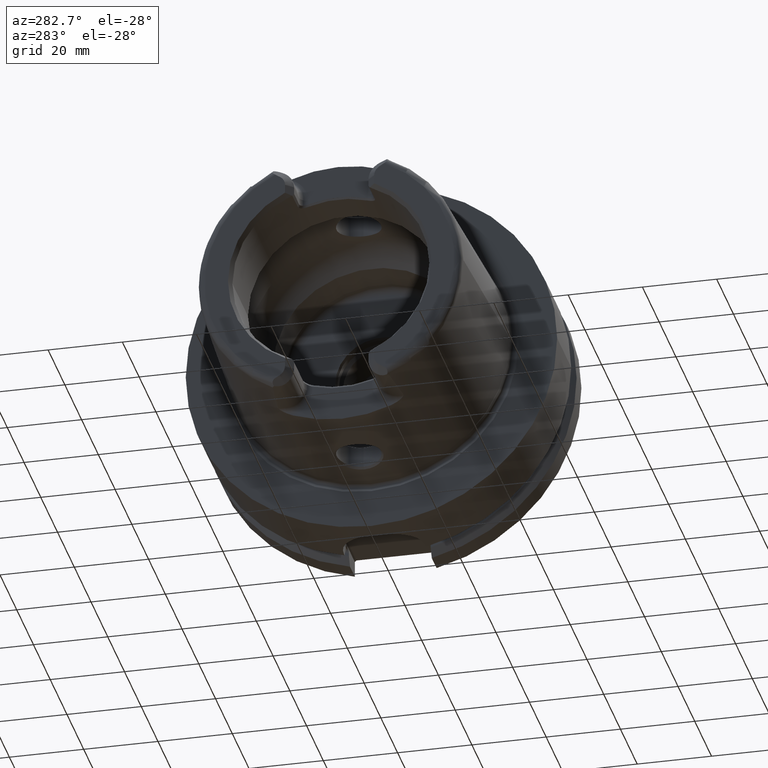
[diagram: clean part render]
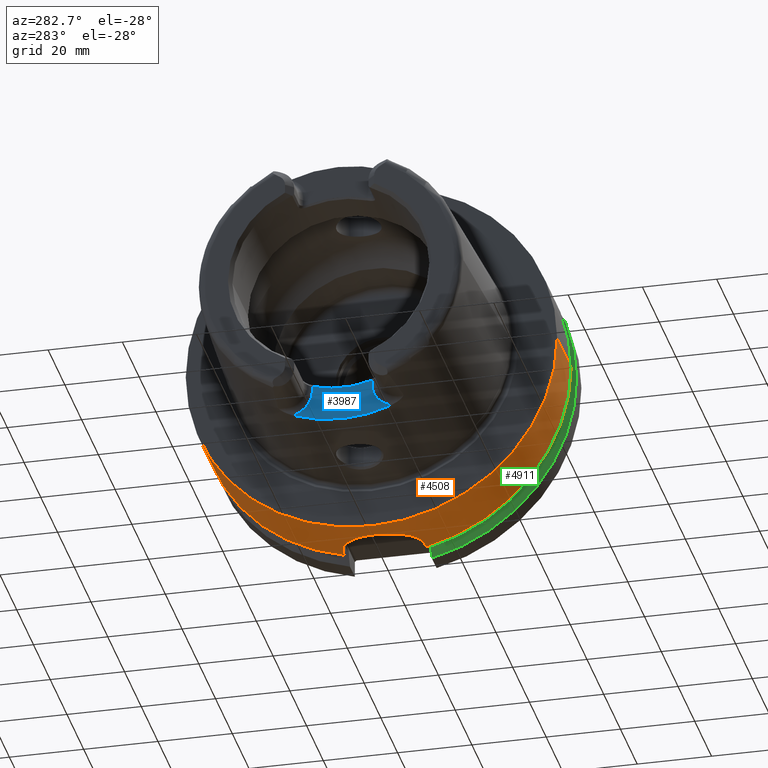
[diagram: same view with three faces highlighted in distinct colors, each labeled with its STEP entity id]
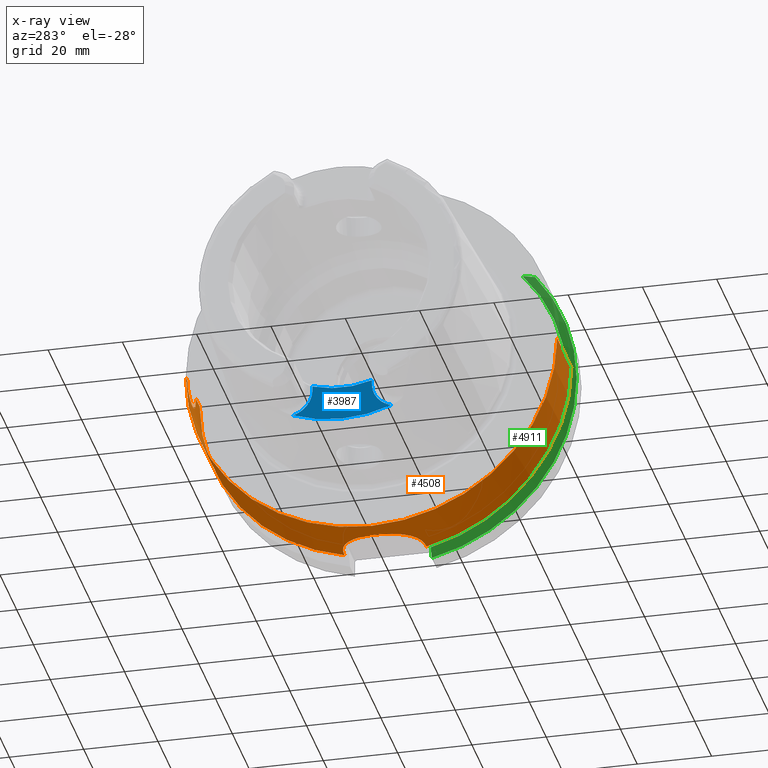
[diagram: x-ray of the same camera — body ghosted, the three highlighted faces saturated]
A machine part, auxiliary view with three faces highlighted in distinct colors.
The next image is the same camera in x-ray (body ghosted, the three faces saturated) — at least one of them is partly hidden behind the body in this view.
Their STEP definitions:

[orange] entity #4508 — the highlighted cylindrical surface (partial cylindrical patch) has radius 50 mm, axis along (1, 0, 0).
#910=CARTESIAN_POINT('',(2.842170943040E-14,0.E0,0.E0));
#911=DIRECTION('',(-1.E0,0.E0,0.E0));
#912=DIRECTION('',(0.E0,1.E0,0.E0));
#913=AXIS2_PLACEMENT_3D('',#910,#911,#912);
#965=CARTESIAN_POINT('',(2.E0,5.E1,1.118758432857E-13));
#967=CARTESIAN_POINT('',(1.2E1,5.E1,2.305800131571E-14));
#1149=DIRECTION('',(1.E0,0.E0,0.E0));
#1150=VECTOR('',#1149,7.524047358084E-1);
#1151=CARTESIAN_POINT('',(1.6E1,1.1E1,-4.877499359303E1));
#1152=LINE('',#1151,#1150);
#1153=CARTESIAN_POINT('',(1.675240473581E1,0.E0,0.E0));
#1154=DIRECTION('',(1.E0,0.E0,0.E0));
#1155=DIRECTION('',(0.E0,2.2E-1,-9.754998718606E-1));
#1156=AXIS2_PLACEMENT_3D('',#1153,#1154,#1155);
#1158=DIRECTION('',(-1.E0,0.E0,0.E0));
#1159=VECTOR('',#1158,4.752404735808E0);
#1160=CARTESIAN_POINT('',(1.675240473581E1,5.E1,0.E0));
#1161=LINE('',#1160,#1159);
#1162=CARTESIAN_POINT('',(7.E0,4.974937185533E1,-5.E0));
#1163=CARTESIAN_POINT('',(7.214633369567E0,4.974937185533E1,-5.E0));
#1164=CARTESIAN_POINT('',(7.640386298435E0,4.975213065018E1,-4.972666360467E0));
#1165=CARTESIAN_POINT('',(8.274641361953E0,4.976438841384E1,-4.849158121706E0));
#1166=CARTESIAN_POINT('',(8.886020855356E0,4.978391945578E1,-4.645521380047E0));
#1167=CARTESIAN_POINT('',(9.464921805396E0,4.980935892457E1,-4.365866273701E0));
#1168=CARTESIAN_POINT('',(1.000148682294E1,4.983894625348E1,-4.016101899832E0));
#1169=CARTESIAN_POINT('',(1.049544382004E1,4.987128929303E1,-3.594954537167E0));
#1170=CARTESIAN_POINT('',(1.093328252566E1,4.990407345488E1,-3.109850358381E0));
#1171=CARTESIAN_POINT('',(1.130435342350E1,4.993485871418E1,-2.572130277900E0));
#1172=CARTESIAN_POINT('',(1.160677173349E1,4.996197754497E1,-1.981903060800E0));
#1173=CARTESIAN_POINT('',(1.183330662283E1,4.998349884815E1,-1.340220481854E0));
#1174=CARTESIAN_POINT('',(1.197044850157E1,4.999703119876E1,
-6.688359514011E-1));
#1175=CARTESIAN_POINT('',(1.2E1,5.E1,-2.237498970126E-1));
#1176=CARTESIAN_POINT('',(1.2E1,5.E1,2.305800131571E-14));
#1178=CARTESIAN_POINT('',(2.E0,5.E1,1.118758432857E-13));
#1179=CARTESIAN_POINT('',(2.E0,5.E1,-2.234702192277E-1));
#1180=CARTESIAN_POINT('',(2.029478359112E0,4.999703853190E1,
-6.681473837066E-1));
#1181=CARTESIAN_POINT('',(2.166444197694E0,4.998352324893E1,-1.339309249725E0));
#1182=CARTESIAN_POINT('',(2.392942530114E0,4.996200329443E1,-1.981343201711E0));
#1183=CARTESIAN_POINT('',(2.695842610324E0,4.993484130346E1,-2.572495925426E0));
#1184=CARTESIAN_POINT('',(3.066846855438E0,4.990406337793E1,-3.109998926782E0));
#1185=CARTESIAN_POINT('',(3.504802790907E0,4.987127154916E1,-3.595208944890E0));
#1186=CARTESIAN_POINT('',(3.998946554545E0,4.983891901808E1,-4.016442348510E0));
#1187=CARTESIAN_POINT('',(4.535798414476E0,4.980932338391E1,-4.366269177248E0));
#1188=CARTESIAN_POINT('',(5.114389528668E0,4.978390508543E1,-4.645671467419E0));
#1189=CARTESIAN_POINT('',(5.725653660578E0,4.976438108882E1,-4.849233183616E0));
#1190=CARTESIAN_POINT('',(6.359805679124E0,4.975212880871E1,-4.972684387731E0));
#1191=CARTESIAN_POINT('',(6.785436141585E0,4.974937185533E1,-5.E0));
#1192=CARTESIAN_POINT('',(7.E0,4.974937185533E1,-5.E0));
#1194=DIRECTION('',(-1.E0,0.E0,-5.389684364428E-14));
#1195=VECTOR('',#1194,2.E0);
#1196=CARTESIAN_POINT('',(2.E0,5.E1,1.118758432857E-13));
#1197=LINE('',#1196,#1195);
#1198=DIRECTION('',(-1.E0,0.E0,0.E0));
#1199=VECTOR('',#1198,1.675240473581E1);
#1200=CARTESIAN_POINT('',(1.675240473581E1,-5.E1,-1.020538999289E-14));
#1201=LINE('',#1200,#1199);
#1202=CARTESIAN_POINT('',(1.675240473581E1,0.E0,0.E0));
#1203=DIRECTION('',(1.E0,0.E0,0.E0));
#1204=DIRECTION('',(0.E0,-1.E0,0.E0));
#1205=AXIS2_PLACEMENT_3D('',#1202,#1203,#1204);
#1207=DIRECTION('',(1.E0,0.E0,0.E0));
#1208=VECTOR('',#1207,7.524047358084E-1);
#1209=CARTESIAN_POINT('',(1.6E1,-1.1E1,-4.877499359303E1));
#1210=LINE('',#1209,#1208);
#1211=CARTESIAN_POINT('',(1.6E1,1.1E1,-4.877499359303E1));
#1212=CARTESIAN_POINT('',(1.559018257905E1,1.1E1,-4.877499359303E1));
#1213=CARTESIAN_POINT('',(1.477711159673E1,1.095451320529E1,-4.878528536585E1));
#1214=CARTESIAN_POINT('',(1.357067145529E1,1.075155562543E1,-4.883060913739E1));
#1215=CARTESIAN_POINT('',(1.239697044362E1,1.041701199330E1,-4.890337958253E1));
#1216=CARTESIAN_POINT('',(1.126604368867E1,9.954285023678E0,-4.900007168819E1));
#1217=CARTESIAN_POINT('',(1.018861460789E1,9.366719390129E0,-4.911629237336E1));
#1218=CARTESIAN_POINT('',(9.171169852965E0,8.653611601527E0,-4.924753373663E1));
#1219=CARTESIAN_POINT('',(8.238112427873E0,7.827355870653E0,-4.938617340423E1));
#1220=CARTESIAN_POINT('',(7.408534809738E0,6.906350690547E0,-4.952392252207E1));
#1221=CARTESIAN_POINT('',(6.684814288863E0,5.894847548323E0,-4.965510065551E1));
#1222=CARTESIAN_POINT('',(6.073071272628E0,4.794393782369E0,-4.977397254495E1));
#1223=CARTESIAN_POINT('',(5.592123651736E0,3.632677023721E0,-4.987254683568E1));
#1224=CARTESIAN_POINT('',(5.250238197135E0,2.439289241831E0,-4.994531736735E1));
#1225=CARTESIAN_POINT('',(5.045520699082E0,1.225562746985E0,-4.998995582807E1));
#1226=CARTESIAN_POINT('',(4.977227881444E0,-3.740276953115E-4,
-5.000502466790E1));
#1227=CARTESIAN_POINT('',(5.045567799397E0,-1.225855878190E0,
-4.998994549498E1));
#1228=CARTESIAN_POINT('',(5.250299426848E0,-2.439598673877E0,
-4.994530410544E1));
#1229=CARTESIAN_POINT('',(5.592303250762E0,-3.633222860669E0,
-4.987250891646E1));
#1230=CARTESIAN_POINT('',(6.073397920689E0,-4.795067840635E0,
-4.977390711218E1));
#1231=CARTESIAN_POINT('',(6.685094341996E0,-5.895262007410E0,
-4.965504880039E1));
#1232=CARTESIAN_POINT('',(7.408627914384E0,-6.906453417659E0,
-4.952390705198E1));
#1233=CARTESIAN_POINT('',(8.238178868202E0,-7.827424926999E0,
-4.938616267622E1));
#1234=CARTESIAN_POINT('',(9.171249006951E0,-8.653666912305E0,
-4.924752342943E1));
#1235=CARTESIAN_POINT('',(1.018844028681E1,-9.366593829070E0,
-4.911631544663E1));
#1236=CARTESIAN_POINT('',(1.126555151976E1,-9.954042725384E0,
-4.900012084109E1));
#1237=CARTESIAN_POINT('',(1.239641067197E1,-1.041682105138E1,
-4.890342051862E1));
#1238=CARTESIAN_POINT('',(1.357019214113E1,-1.075145104870E1,
-4.883063231386E1));
#1239=CARTESIAN_POINT('',(1.477674649303E1,-1.095448033737E1,
-4.878529280321E1));
#1240=CARTESIAN_POINT('',(1.559004302136E1,-1.1E1,-4.877499359303E1));
#1241=CARTESIAN_POINT('',(1.6E1,-1.1E1,-4.877499359303E1));
#2839=CARTESIAN_POINT('',(2.842170943040E-14,5.E1,0.E0));
#2840=CARTESIAN_POINT('',(2.842170943040E-14,-5.E1,0.E0));
#2841=VERTEX_POINT('',#2839);
#2842=VERTEX_POINT('',#2840);
#3058=CARTESIAN_POINT('',(1.675240473581E1,-5.E1,-1.020538999289E-14));
#3059=VERTEX_POINT('',#3058);
#3086=CARTESIAN_POINT('',(7.E0,4.974937185533E1,-5.E0));
#3087=VERTEX_POINT('',#3086);
#3088=VERTEX_POINT('',#965);
#3089=VERTEX_POINT('',#967);
#3090=CARTESIAN_POINT('',(1.675240473581E1,5.E1,0.E0));
#3091=VERTEX_POINT('',#3090);
#3140=CARTESIAN_POINT('',(1.6E1,1.1E1,-4.877499359303E1));
#3141=CARTESIAN_POINT('',(1.675240473581E1,1.1E1,-4.877499359303E1));
#3142=VERTEX_POINT('',#3140);
#3143=VERTEX_POINT('',#3141);
#3148=CARTESIAN_POINT('',(1.6E1,-1.1E1,-4.877499359303E1));
#3149=CARTESIAN_POINT('',(1.675240473581E1,-1.1E1,-4.877499359303E1));
#3150=VERTEX_POINT('',#3148);
#3151=VERTEX_POINT('',#3149);
#4483=CARTESIAN_POINT('',(-5.395E1,0.E0,0.E0));
#4484=DIRECTION('',(1.E0,0.E0,0.E0));
#4485=DIRECTION('',(0.E0,-1.E0,0.E0));
#4486=AXIS2_PLACEMENT_3D('',#4483,#4484,#4485);
#4487=CYLINDRICAL_SURFACE('',#4486,5.E1);
#4489=ORIENTED_EDGE('',*,*,#4488,.T.);
#4491=ORIENTED_EDGE('',*,*,#4490,.T.);
#4492=ORIENTED_EDGE('',*,*,#4307,.T.);
#4494=ORIENTED_EDGE('',*,*,#4493,.F.);
#4496=ORIENTED_EDGE('',*,*,#4495,.F.);
#4497=ORIENTED_EDGE('',*,*,#4301,.T.);
#4498=ORIENTED_EDGE('',*,*,#4276,.T.);
#4499=ORIENTED_EDGE('',*,*,#4298,.F.);
#4501=ORIENTED_EDGE('',*,*,#4500,.T.);
#4503=ORIENTED_EDGE('',*,*,#4502,.F.);
#4505=ORIENTED_EDGE('',*,*,#4504,.F.);
#4506=EDGE_LOOP('',(#4489,#4491,#4492,#4494,#4496,#4497,#4498,#4499,#4501,#4503,
#4505));
#4507=FACE_OUTER_BOUND('',#4506,.F.);
#4508=ADVANCED_FACE('',(#4507),#4487,.T.);
#914=CIRCLE('',#913,5.E1);
#1157=CIRCLE('',#1156,5.E1);
#1177=B_SPLINE_CURVE_WITH_KNOTS('',3,(#1162,#1163,#1164,#1165,#1166,#1167,#1168,
#1169,#1170,#1171,#1172,#1173,#1174,#1175,#1176),.UNSPECIFIED.,.F.,.F.,(4,1,1,1,
1,1,1,1,1,1,1,1,4),(0.E0,8.333333333333E-2,1.666666666667E-1,2.5E-1,
3.333333333333E-1,4.166666666667E-1,5.E-1,5.833333333333E-1,6.666666666667E-1,
7.5E-1,8.333333333333E-1,9.166666666667E-1,1.E0),.UNSPECIFIED.);
#1193=B_SPLINE_CURVE_WITH_KNOTS('',3,(#1178,#1179,#1180,#1181,#1182,#1183,#1184,
#1185,#1186,#1187,#1188,#1189,#1190,#1191,#1192),.UNSPECIFIED.,.F.,.F.,(4,1,1,1,
1,1,1,1,1,1,1,1,4),(0.E0,8.333333333333E-2,1.666666666667E-1,2.5E-1,
3.333333333333E-1,4.166666666667E-1,5.E-1,5.833333333333E-1,6.666666666667E-1,
7.5E-1,8.333333333333E-1,9.166666666667E-1,1.E0),.UNSPECIFIED.);
#1206=CIRCLE('',#1205,5.E1);
#1242=B_SPLINE_CURVE_WITH_KNOTS('',3,(#1211,#1212,#1213,#1214,#1215,#1216,#1217,
#1218,#1219,#1220,#1221,#1222,#1223,#1224,#1225,#1226,#1227,#1228,#1229,#1230,
#1231,#1232,#1233,#1234,#1235,#1236,#1237,#1238,#1239,#1240,#1241),
.UNSPECIFIED.,.F.,.F.,(4,1,1,1,1,1,1,1,1,1,1,1,1,1,1,1,1,1,1,1,1,1,1,1,1,1,1,1,
4),(0.E0,3.571428571429E-2,7.142857142857E-2,1.071428571429E-1,
1.428571428571E-1,1.785714285714E-1,2.142857142857E-1,2.5E-1,2.857142857143E-1,
3.214285714286E-1,3.571428571429E-1,3.928571428571E-1,4.285714285714E-1,
4.642857142857E-1,5.E-1,5.357142857143E-1,5.714285714286E-1,6.071428571429E-1,
6.428571428571E-1,6.785714285714E-1,7.142857142857E-1,7.5E-1,7.857142857143E-1,
8.214285714286E-1,8.571428571429E-1,8.928571428571E-1,9.285714285714E-1,
9.642857142857E-1,1.E0),.UNSPECIFIED.);
#4276=EDGE_CURVE('',#2841,#2842,#914,.T.);
#4298=EDGE_CURVE('',#3059,#2842,#1201,.T.);
#4301=EDGE_CURVE('',#3088,#2841,#1197,.T.);
#4307=EDGE_CURVE('',#3091,#3089,#1161,.T.);
#4488=EDGE_CURVE('',#3142,#3143,#1152,.T.);
#4490=EDGE_CURVE('',#3143,#3091,#1157,.T.);
#4493=EDGE_CURVE('',#3087,#3089,#1177,.T.);
#4495=EDGE_CURVE('',#3088,#3087,#1193,.T.);
#4500=EDGE_CURVE('',#3059,#3151,#1206,.T.);
#4502=EDGE_CURVE('',#3150,#3151,#1210,.T.);
#4504=EDGE_CURVE('',#3142,#3150,#1242,.T.);

[blue] entity #3987 — the highlighted planar face has unit normal (-1, 0, 0).
#549=CARTESIAN_POINT('',(-3.5E1,0.E0,0.E0));
#550=DIRECTION('',(1.E0,0.E0,0.E0));
#551=DIRECTION('',(0.E0,-3.659355944317E-1,-9.306401779033E-1));
#552=AXIS2_PLACEMENT_3D('',#549,#550,#551);
#659=CARTESIAN_POINT('',(-3.5E1,1.326662904053E1,-3.373942900971E1));
#700=CARTESIAN_POINT('',(-3.5E1,-8.009999999994E0,-2.576044140549E1));
#701=CARTESIAN_POINT('',(-3.5E1,-7.269616392494E0,-2.599521452766E1));
#702=CARTESIAN_POINT('',(-3.5E1,-5.774680607735E0,-2.639793295020E1));
#703=CARTESIAN_POINT('',(-3.5E1,-3.481759859027E0,-2.680464578135E1));
#704=CARTESIAN_POINT('',(-3.5E1,-1.163574268408E0,-2.700848033442E1));
#705=CARTESIAN_POINT('',(-3.5E1,1.163574229636E0,-2.700848033529E1));
#706=CARTESIAN_POINT('',(-3.5E1,3.481759771636E0,-2.680464579107E1));
#707=CARTESIAN_POINT('',(-3.5E1,5.774680487919E0,-2.639793297771E1));
#708=CARTESIAN_POINT('',(-3.5E1,7.269616343063E0,-2.599521454333E1));
#709=CARTESIAN_POINT('',(-3.5E1,8.009999999993E0,-2.576044140549E1));
#711=DIRECTION('',(0.E0,-5.262912738182E-12,-1.E0));
#712=VECTOR('',#711,1.199558594507E0);
#713=CARTESIAN_POINT('',(-3.5E1,-8.009999999994E0,-2.576044140549E1));
#714=LINE('',#713,#712);
#715=CARTESIAN_POINT('',(-3.5E1,-1.501E1,-2.696E1));
#716=DIRECTION('',(-1.E0,0.E0,0.E0));
#717=DIRECTION('',(0.E0,1.E0,0.E0));
#718=AXIS2_PLACEMENT_3D('',#715,#716,#717);
#720=CARTESIAN_POINT('',(-3.5E1,1.501E1,-2.696E1));
#721=DIRECTION('',(-1.E0,0.E0,0.E0));
#722=DIRECTION('',(0.E0,-2.490529942106E-1,-9.684898585296E-1));
#723=AXIS2_PLACEMENT_3D('',#720,#721,#722);
#725=DIRECTION('',(0.E0,-6.865183864462E-12,1.E0));
#726=VECTOR('',#725,1.199558594503E0);
#727=CARTESIAN_POINT('',(-3.5E1,8.010000000001E0,-2.695999999999E1));
#728=LINE('',#727,#726);
#799=CARTESIAN_POINT('',(-3.5E1,-1.326662904053E1,-3.373942900971E1));
#2991=VERTEX_POINT('',#799);
#2992=VERTEX_POINT('',#659);
#2996=CARTESIAN_POINT('',(-3.5E1,-8.01E0,-2.696E1));
#2998=VERTEX_POINT('',#2996);
#3000=CARTESIAN_POINT('',(-3.5E1,8.01E0,-2.696E1));
#3002=VERTEX_POINT('',#3000);
#3008=VERTEX_POINT('',#700);
#3009=VERTEX_POINT('',#709);
#3972=CARTESIAN_POINT('',(-3.5E1,0.E0,0.E0));
#3973=DIRECTION('',(-1.E0,0.E0,0.E0));
#3974=DIRECTION('',(0.E0,0.E0,1.E0));
#3975=AXIS2_PLACEMENT_3D('',#3972,#3973,#3974);
#3976=PLANE('',#3975);
#3977=ORIENTED_EDGE('',*,*,#3963,.F.);
#3979=ORIENTED_EDGE('',*,*,#3978,.T.);
#3981=ORIENTED_EDGE('',*,*,#3980,.T.);
#3982=ORIENTED_EDGE('',*,*,#3811,.T.);
#3983=ORIENTED_EDGE('',*,*,#3869,.T.);
#3984=ORIENTED_EDGE('',*,*,#3881,.T.);
#3985=EDGE_LOOP('',(#3977,#3979,#3981,#3982,#3983,#3984));
#3986=FACE_OUTER_BOUND('',#3985,.F.);
#3987=ADVANCED_FACE('',(#3986),#3976,.T.);
#553=CIRCLE('',#552,3.6254E1);
#710=B_SPLINE_CURVE_WITH_KNOTS('',3,(#700,#701,#702,#703,#704,#705,#706,#707,
#708,#709),.UNSPECIFIED.,.F.,.F.,(4,1,1,1,1,1,1,4),(0.E0,1.428571428571E-1,
2.857142857143E-1,4.285714285714E-1,5.714285714286E-1,7.142857142857E-1,
8.571428571429E-1,1.E0),.UNSPECIFIED.);
#719=CIRCLE('',#718,7.E0);
#724=CIRCLE('',#723,7.E0);
#3811=EDGE_CURVE('',#2991,#2992,#553,.T.);
#3869=EDGE_CURVE('',#2992,#3002,#724,.T.);
#3881=EDGE_CURVE('',#3002,#3009,#728,.T.);
#3963=EDGE_CURVE('',#3008,#3009,#710,.T.);
#3978=EDGE_CURVE('',#3008,#2998,#714,.T.);
#3980=EDGE_CURVE('',#2998,#2991,#719,.T.);

[green] entity #4911 — the highlighted conical surface has half-angle 60 deg.
#1670=CARTESIAN_POINT('',(2.1875E1,-3.571640491003E1,3.15E1));
#1671=CARTESIAN_POINT('',(2.201925574841E1,-3.604955434192E1,3.15E1));
#1672=CARTESIAN_POINT('',(2.231322476087E1,-3.672437326077E1,3.15E1));
#1673=CARTESIAN_POINT('',(2.277010201186E1,-3.776083400964E1,3.15E1));
#1674=CARTESIAN_POINT('',(2.308650936123E1,-3.847048452534E1,3.15E1));
#1675=CARTESIAN_POINT('',(2.324759526419E1,-3.882975663071E1,3.15E1));
#1677=CARTESIAN_POINT('',(2.324759526419E1,0.E0,0.E0));
#1678=DIRECTION('',(1.E0,0.E0,0.E0));
#1679=DIRECTION('',(0.E0,-7.765951326142E-1,6.3E-1));
#1680=AXIS2_PLACEMENT_3D('',#1677,#1678,#1679);
#1682=CARTESIAN_POINT('',(2.1875E1,-1.1E1,-4.633477721644E1));
#1683=CARTESIAN_POINT('',(2.202318700409E1,-1.1E1,-4.659857839127E1));
#1684=CARTESIAN_POINT('',(2.232244181881E1,-1.1E1,-4.713106867413E1));
#1685=CARTESIAN_POINT('',(2.277988963764E1,-1.1E1,-4.794432689775E1));
#1686=CARTESIAN_POINT('',(2.309072380685E1,-1.1E1,-4.849646015371E1));
#1687=CARTESIAN_POINT('',(2.324759526419E1,-1.1E1,-4.877499359303E1));
#1689=CARTESIAN_POINT('',(2.1875E1,0.E0,0.E0));
#1690=DIRECTION('',(-1.E0,0.E0,0.E0));
#1691=DIRECTION('',(0.E0,-2.309827916554E-1,-9.729578356533E-1));
#1692=AXIS2_PLACEMENT_3D('',#1689,#1690,#1691);
#3152=CARTESIAN_POINT('',(2.324759526419E1,-1.1E1,-4.877499359303E1));
#3154=VERTEX_POINT('',#3152);
#3174=CARTESIAN_POINT('',(2.1875E1,-1.1E1,-4.633477721644E1));
#3175=VERTEX_POINT('',#3174);
#3202=CARTESIAN_POINT('',(2.324759526419E1,-3.882975663071E1,3.15E1));
#3204=VERTEX_POINT('',#3202);
#3226=CARTESIAN_POINT('',(2.1875E1,-3.571640491003E1,3.15E1));
#3227=VERTEX_POINT('',#3226);
#4900=CARTESIAN_POINT('',(2.256129763210E1,0.E0,0.E0));
#4901=DIRECTION('',(1.E0,0.E0,0.E0));
#4902=DIRECTION('',(0.E0,-1.E0,0.E0));
#4903=AXIS2_PLACEMENT_3D('',#4900,#4901,#4902);
#4904=CONICAL_SURFACE('',#4903,4.881129763210E1,6.E1);
#4905=ORIENTED_EDGE('',*,*,#4420,.T.);
#4906=ORIENTED_EDGE('',*,*,#4463,.T.);
#4907=ORIENTED_EDGE('',*,*,#4614,.F.);
#4908=ORIENTED_EDGE('',*,*,#4865,.T.);
#4909=EDGE_LOOP('',(#4905,#4906,#4907,#4908));
#4910=FACE_OUTER_BOUND('',#4909,.F.);
#4911=ADVANCED_FACE('',(#4910),#4904,.T.);
#1676=B_SPLINE_CURVE_WITH_KNOTS('',3,(#1670,#1671,#1672,#1673,#1674,#1675),
.UNSPECIFIED.,.F.,.F.,(4,1,1,4),(0.E0,3.333333333333E-1,6.666666666667E-1,1.E0),
.UNSPECIFIED.);
#1681=CIRCLE('',#1680,5.E1);
#1688=B_SPLINE_CURVE_WITH_KNOTS('',3,(#1682,#1683,#1684,#1685,#1686,#1687),
.UNSPECIFIED.,.F.,.F.,(4,1,1,4),(0.E0,3.333333333333E-1,6.666666666667E-1,1.E0),
.UNSPECIFIED.);
#1693=CIRCLE('',#1692,4.762259526419E1);
#4420=EDGE_CURVE('',#3227,#3204,#1676,.T.);
#4463=EDGE_CURVE('',#3204,#3154,#1681,.T.);
#4614=EDGE_CURVE('',#3175,#3154,#1688,.T.);
#4865=EDGE_CURVE('',#3175,#3227,#1693,.T.);